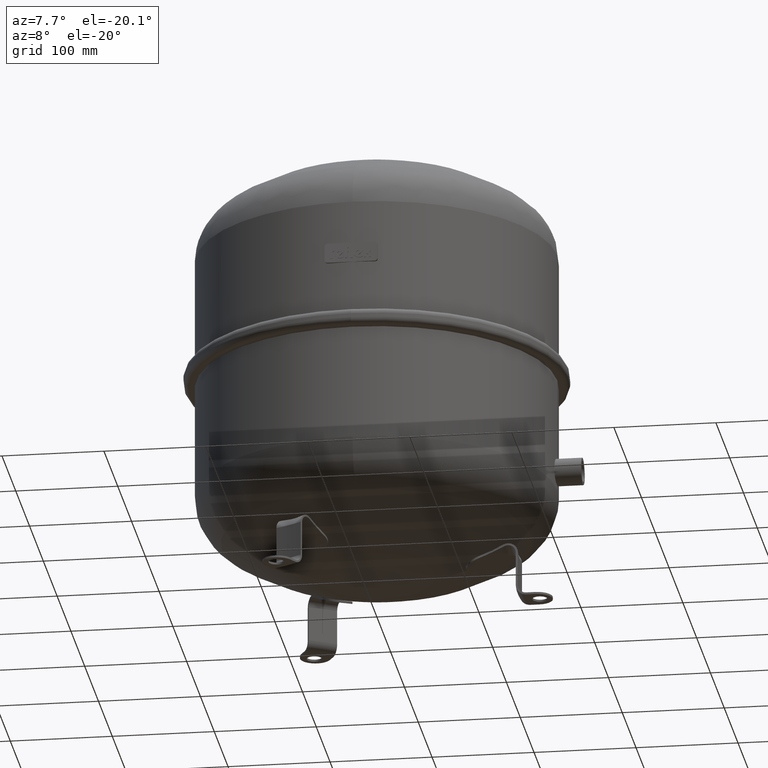
[diagram: clean part render]
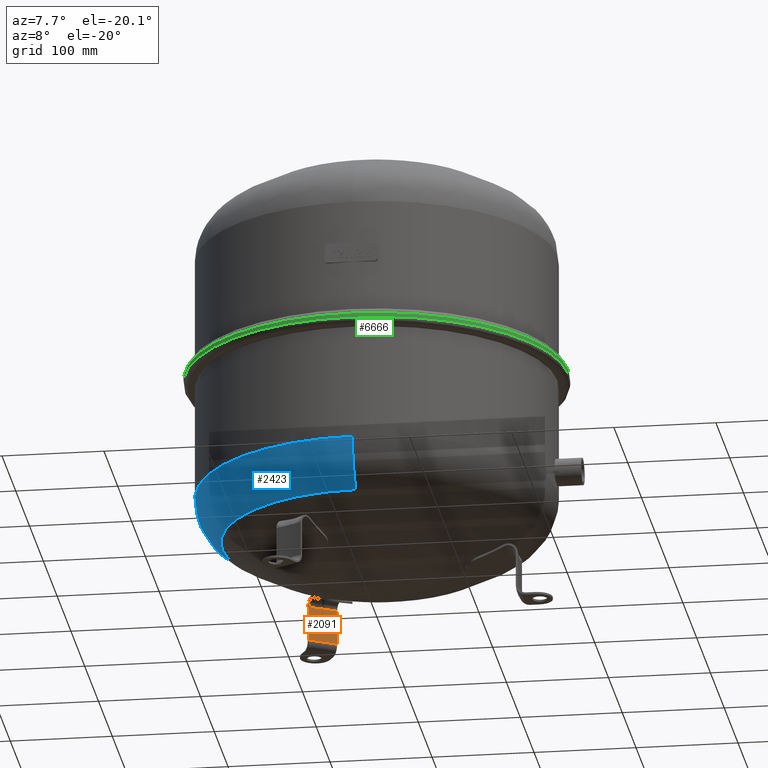
[diagram: same view with three faces highlighted in distinct colors, each labeled with its STEP entity id]
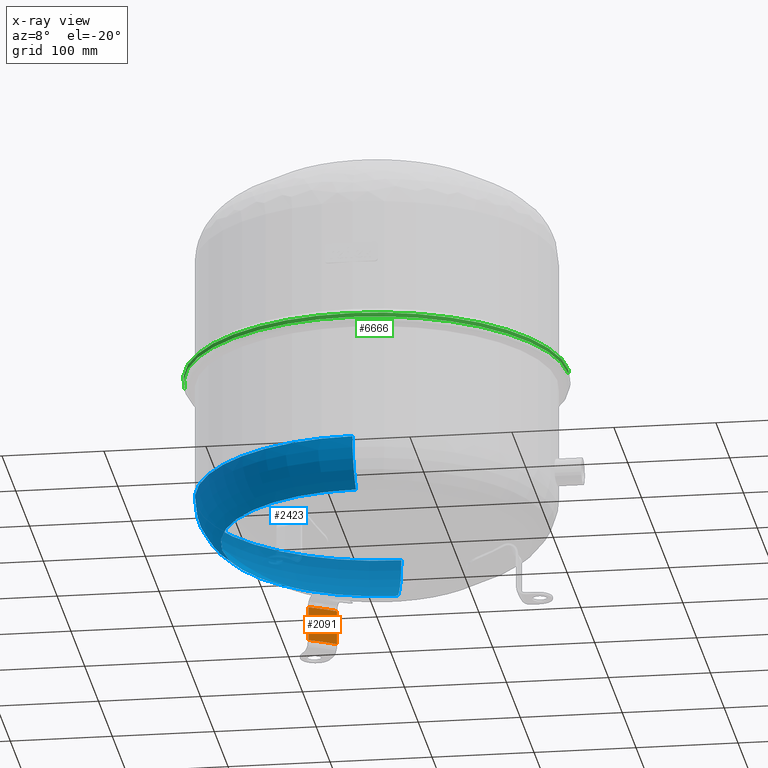
[diagram: x-ray of the same camera — body ghosted, the three highlighted faces saturated]
A machine part, auxiliary view with three faces highlighted in distinct colors.
The next image is the same camera in x-ray (body ghosted, the three faces saturated) — at least one of them is partly hidden behind the body in this view.
Their STEP definitions:

[orange] entity #2091 — the highlighted cylindrical surface (partial cylindrical patch) has radius 150.375 mm, axis along (0, 0, 1).
#1865=CARTESIAN_POINT('',(-82.115381056766509,112.22801207319868,44.000000000000007));
#1866=VERTEX_POINT('',#1865);
#1874=CARTESIAN_POINT('',(-56.134618943233342,127.22801207319867,44.000000000000007));
#1875=VERTEX_POINT('',#1874);
#1876=CARTESIAN_POINT('',(-143.93749999999972,249.30706311444504,44.000000000000007));
#1877=DIRECTION('',(0.0,0.0,-1.0));
#1878=DIRECTION('',(0.41111966047038,-0.911581386807958,0.0));
#1879=AXIS2_PLACEMENT_3D('',#1876,#1877,#1878);
#1880=CIRCLE('',#1879,150.37499999999963);
#1881=EDGE_CURVE('',#1875,#1866,#1880,.T.);
#1930=CARTESIAN_POINT('',(-56.134618943233392,127.22801207319864,10.000000000000002));
#1931=VERTEX_POINT('',#1930);
#1932=CARTESIAN_POINT('',(-56.134618943233392,127.22801207319864,44.000000000000007));
#1933=DIRECTION('',(0.0,0.0,-1.0));
#1934=VECTOR('',#1933,34.000000000000007);
#1935=LINE('',#1932,#1934);
#1936=EDGE_CURVE('',#1875,#1931,#1935,.T.);
#2067=CARTESIAN_POINT('',(-143.93749999999974,249.30706311444499,2.0));
#2068=DIRECTION('',(0.0,0.0,1.0));
#2069=DIRECTION('',(0.41111966047038,-0.911581386807958,0.0));
#2070=AXIS2_PLACEMENT_3D('',#2067,#2068,#2069);
#2071=CYLINDRICAL_SURFACE('',#2070,150.37499999999966);
#2072=CARTESIAN_POINT('',(-82.115381056766552,112.22801207319866,10.000000000000002));
#2073=VERTEX_POINT('',#2072);
#2074=CARTESIAN_POINT('',(-82.115381056766509,112.22801207319868,10.000000000000002));
#2075=DIRECTION('',(0.0,0.0,1.0));
#2076=VECTOR('',#2075,34.000000000000014);
#2077=LINE('',#2074,#2076);
#2078=EDGE_CURVE('',#2073,#1866,#2077,.T.);
#2079=ORIENTED_EDGE('',*,*,#2078,.F.);
#2080=CARTESIAN_POINT('',(-143.93749999999974,249.30706311444499,10.000000000000002));
#2081=DIRECTION('',(0.0,0.0,-1.0));
#2082=DIRECTION('',(0.5,-0.866025403784439,0.0));
#2083=AXIS2_PLACEMENT_3D('',#2080,#2081,#2082);
#2084=CIRCLE('',#2083,150.37499999999963);
#2085=EDGE_CURVE('',#1931,#2073,#2084,.T.);
#2086=ORIENTED_EDGE('',*,*,#2085,.F.);
#2087=ORIENTED_EDGE('',*,*,#1936,.F.);
#2088=ORIENTED_EDGE('',*,*,#1881,.T.);
#2089=EDGE_LOOP('',(#2079,#2086,#2087,#2088));
#2090=FACE_OUTER_BOUND('',#2089,.T.);
#2091=ADVANCED_FACE('',(#2090),#2071,.T.);

[blue] entity #2423 — the highlighted toroidal blend (fillet) surface has major radius 122.5 mm and minor (blend) radius 54.5 mm.
#2328=CARTESIAN_POINT('',(-177.00000000000003,-1.655320E-014,112.1114311318579));
#2329=VERTEX_POINT('',#2328);
#2353=CARTESIAN_POINT('',(-2.167553E-014,177.0,112.11143113185793));
#2354=VERTEX_POINT('',#2353);
#2362=CARTESIAN_POINT('',(0.0,-1.655320E-014,112.1114311318579));
#2363=DIRECTION('',(0.0,0.0,1.0));
#2364=DIRECTION('',(-1.0,0.0,0.0));
#2365=AXIS2_PLACEMENT_3D('',#2362,#2363,#2364);
#2366=CIRCLE('',#2365,177.00000000000003);
#2367=EDGE_CURVE('',#2354,#2329,#2366,.T.);
#2372=CARTESIAN_POINT('',(0.0,-1.655320E-014,112.11143113185793));
#2373=DIRECTION('',(0.0,-1.836970E-016,1.0));
#2374=DIRECTION('',(0.0,-1.0,0.0));
#2375=AXIS2_PLACEMENT_3D('',#2372,#2373,#2374);
#2376=TOROIDAL_SURFACE('',#2375,122.50000000000003,54.499999999999993);
#2377=CARTESIAN_POINT('',(0.0,-177.00000000000006,112.11143113185787));
#2378=VERTEX_POINT('',#2377);
#2379=CARTESIAN_POINT('',(0.0,-151.71772428884029,66.105186040769311));
#2380=VERTEX_POINT('',#2379);
#2381=CARTESIAN_POINT('',(0.0,-122.50000000000004,112.11143113185791));
#2382=DIRECTION('',(1.0,0.0,0.0));
#2383=DIRECTION('',(0.0,-1.0,0.0));
#2384=AXIS2_PLACEMENT_3D('',#2381,#2382,#2383);
#2385=CIRCLE('',#2384,54.499999999999993);
#2386=EDGE_CURVE('',#2378,#2380,#2385,.T.);
#2387=ORIENTED_EDGE('',*,*,#2386,.F.);
#2388=CARTESIAN_POINT('',(0.0,-1.655320E-014,112.1114311318579));
#2389=DIRECTION('',(0.0,0.0,1.0));
#2390=DIRECTION('',(-1.0,0.0,0.0));
#2391=AXIS2_PLACEMENT_3D('',#2388,#2389,#2390);
#2392=CIRCLE('',#2391,177.00000000000003);
#2393=EDGE_CURVE('',#2329,#2378,#2392,.T.);
#2394=ORIENTED_EDGE('',*,*,#2393,.F.);
#2395=ORIENTED_EDGE('',*,*,#2367,.F.);
#2396=CARTESIAN_POINT('',(-1.857945E-014,151.71772428884029,66.10518604076934));
#2397=VERTEX_POINT('',#2396);
#2398=CARTESIAN_POINT('',(-1.500143E-014,122.50000000000001,112.11143113185794));
#2399=DIRECTION('',(-1.0,0.0,0.0));
#2400=DIRECTION('',(0.0,1.0,0.0));
#2401=AXIS2_PLACEMENT_3D('',#2398,#2399,#2400);
#2402=CIRCLE('',#2401,54.499999999999993);
#2403=EDGE_CURVE('',#2354,#2397,#2402,.T.);
#2404=ORIENTED_EDGE('',*,*,#2403,.T.);
#2405=CARTESIAN_POINT('',(-151.71772428884029,-8.101991E-015,66.105186040769325));
#2406=VERTEX_POINT('',#2405);
#2407=CARTESIAN_POINT('',(0.0,-8.101991E-015,66.105186040769325));
#2408=DIRECTION('',(0.0,0.0,1.0));
#2409=DIRECTION('',(-1.0,0.0,0.0));
#2410=AXIS2_PLACEMENT_3D('',#2407,#2408,#2409);
#2411=CIRCLE('',#2410,151.71772428884029);
#2412=EDGE_CURVE('',#2397,#2406,#2411,.T.);
#2413=ORIENTED_EDGE('',*,*,#2412,.T.);
#2414=CARTESIAN_POINT('',(0.0,-8.101991E-015,66.105186040769325));
#2415=DIRECTION('',(0.0,0.0,1.0));
#2416=DIRECTION('',(-1.0,0.0,0.0));
#2417=AXIS2_PLACEMENT_3D('',#2414,#2415,#2416);
#2418=CIRCLE('',#2417,151.71772428884029);
#2419=EDGE_CURVE('',#2406,#2380,#2418,.T.);
#2420=ORIENTED_EDGE('',*,*,#2419,.T.);
#2421=EDGE_LOOP('',(#2387,#2394,#2395,#2404,#2413,#2420));
#2422=FACE_OUTER_BOUND('',#2421,.T.);
#2423=ADVANCED_FACE('',(#2422),#2376,.T.);

[green] entity #6666 — the highlighted cylindrical surface (partial cylindrical patch) has radius 188 mm, axis along (0, 0, -1).
#6589=CARTESIAN_POINT('',(-2.302260E-014,-187.99999999999997,231.5));
#6590=VERTEX_POINT('',#6589);
#6598=CARTESIAN_POINT('',(-187.99999999999997,1.224647E-016,231.5));
#6599=VERTEX_POINT('',#6598);
#6600=CARTESIAN_POINT('',(0.0,1.224647E-016,231.5));
#6601=DIRECTION('',(0.0,0.0,-1.0));
#6602=DIRECTION('',(-1.0,0.0,0.0));
#6603=AXIS2_PLACEMENT_3D('',#6600,#6601,#6602);
#6604=CIRCLE('',#6603,187.99999999999997);
#6605=EDGE_CURVE('',#6590,#6599,#6604,.T.);
#6617=CARTESIAN_POINT('',(0.0,-6.798155E-032,233.5));
#6618=DIRECTION('',(0.0,6.123234E-017,-1.0));
#6619=DIRECTION('',(-1.0,0.0,0.0));
#6620=AXIS2_PLACEMENT_3D('',#6617,#6618,#6619);
#6621=CYLINDRICAL_SURFACE('',#6620,187.99999999999997);
#6622=CARTESIAN_POINT('',(-187.99999999999997,-1.224647E-016,235.5));
#6623=VERTEX_POINT('',#6622);
#6624=CARTESIAN_POINT('',(-187.99999999999997,1.224647E-016,231.5));
#6625=DIRECTION('',(0.0,0.0,1.0));
#6626=VECTOR('',#6625,4.0);
#6627=LINE('',#6624,#6626);
#6628=EDGE_CURVE('',#6599,#6623,#6627,.T.);
#6629=ORIENTED_EDGE('',*,*,#6628,.F.);
#6630=ORIENTED_EDGE('',*,*,#6605,.F.);
#6631=CARTESIAN_POINT('',(187.99999999999997,-2.290013E-014,231.5));
#6632=VERTEX_POINT('',#6631);
#6633=CARTESIAN_POINT('',(0.0,1.224647E-016,231.5));
#6634=DIRECTION('',(0.0,0.0,-1.0));
#6635=DIRECTION('',(-1.0,0.0,0.0));
#6636=AXIS2_PLACEMENT_3D('',#6633,#6634,#6635);
#6637=CIRCLE('',#6636,187.99999999999997);
#6638=EDGE_CURVE('',#6632,#6590,#6637,.T.);
#6639=ORIENTED_EDGE('',*,*,#6638,.F.);
#6640=CARTESIAN_POINT('',(187.99999999999997,-2.314506E-014,235.5));
#6641=VERTEX_POINT('',#6640);
#6642=CARTESIAN_POINT('',(187.99999999999997,-2.290013E-014,231.5));
#6643=DIRECTION('',(0.0,0.0,1.0));
#6644=VECTOR('',#6643,4.0);
#6645=LINE('',#6642,#6644);
#6646=EDGE_CURVE('',#6632,#6641,#6645,.T.);
#6647=ORIENTED_EDGE('',*,*,#6646,.T.);
#6648=CARTESIAN_POINT('',(-2.302260E-014,-187.99999999999997,235.5));
#6649=VERTEX_POINT('',#6648);
#6650=CARTESIAN_POINT('',(0.0,-1.224647E-016,235.5));
#6651=DIRECTION('',(0.0,0.0,-1.0));
#6652=DIRECTION('',(-1.0,0.0,0.0));
#6653=AXIS2_PLACEMENT_3D('',#6650,#6651,#6652);
#6654=CIRCLE('',#6653,187.99999999999997);
#6655=EDGE_CURVE('',#6641,#6649,#6654,.T.);
#6656=ORIENTED_EDGE('',*,*,#6655,.T.);
#6657=CARTESIAN_POINT('',(0.0,-1.224647E-016,235.5));
#6658=DIRECTION('',(0.0,0.0,-1.0));
#6659=DIRECTION('',(-1.0,0.0,0.0));
#6660=AXIS2_PLACEMENT_3D('',#6657,#6658,#6659);
#6661=CIRCLE('',#6660,187.99999999999997);
#6662=EDGE_CURVE('',#6649,#6623,#6661,.T.);
#6663=ORIENTED_EDGE('',*,*,#6662,.T.);
#6664=EDGE_LOOP('',(#6629,#6630,#6639,#6647,#6656,#6663));
#6665=FACE_OUTER_BOUND('',#6664,.T.);
#6666=ADVANCED_FACE('',(#6665),#6621,.T.);